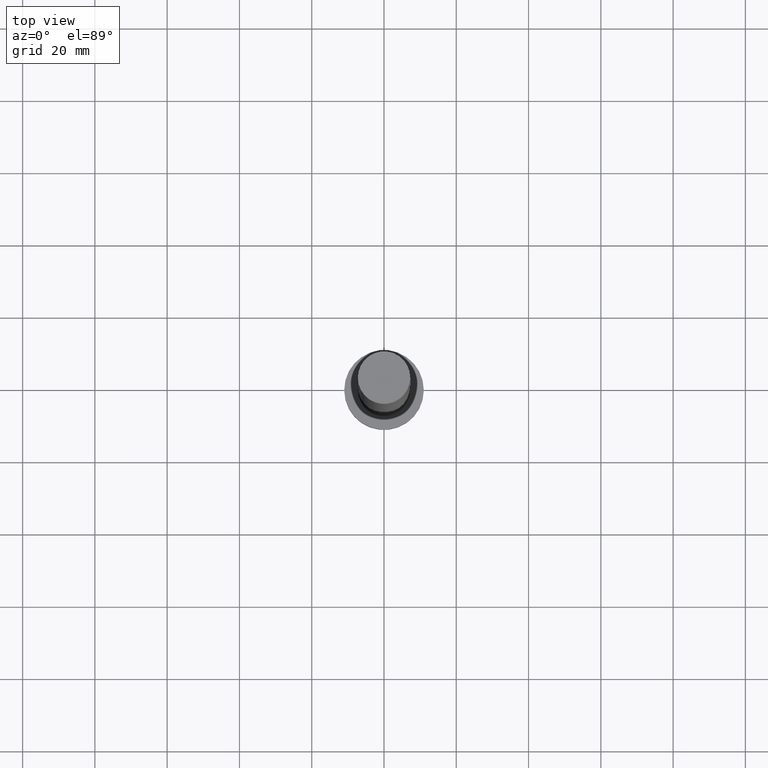
[diagram: clean part render]
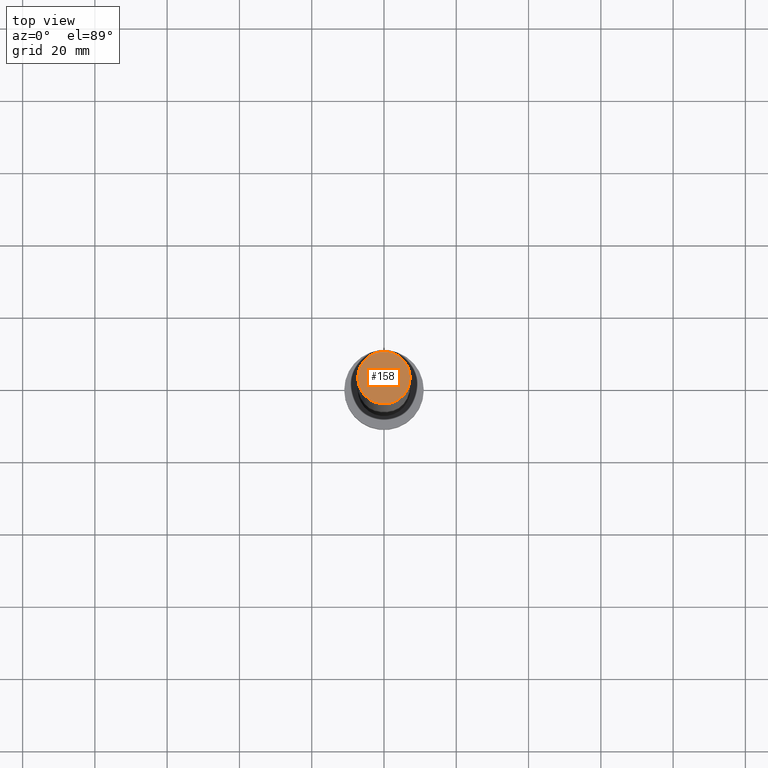
[diagram: same view with one face highlighted and labeled with its STEP entity id]
A machine part, top view. The second image highlights one B-rep face of the part: STEP entity #158.
In plain terms, the highlighted planar face has unit normal (0, 0, 1).
Its self-contained STEP definition (entity closure, byte-faithful):
#1 = DIRECTION ( 'NONE',  ( 1.000000000000000000, 0.000000000000000000, 0.000000000000000000 ) ) ;
#4 = AXIS2_PLACEMENT_3D ( 'NONE', #5, #61, #171 ) ;
#5 = CARTESIAN_POINT ( 'NONE',  ( 0.000000000000000000, 0.000000000000000000, 200.0000000000000000 ) ) ;
#8 = PLANE ( 'NONE',  #82 ) ;
#16 = AXIS2_PLACEMENT_3D ( 'NONE', #57, #75, #1 ) ;
#57 = CARTESIAN_POINT ( 'NONE',  ( 0.000000000000000000, 0.000000000000000000, 200.0000000000000000 ) ) ;
#61 = DIRECTION ( 'NONE',  ( 0.000000000000000000, 0.000000000000000000, 1.000000000000000000 ) ) ;
#71 = CARTESIAN_POINT ( 'NONE',  ( 0.000000000000000000, 0.000000000000000000, 200.0000000000000000 ) ) ;
#75 = DIRECTION ( 'NONE',  ( 0.000000000000000000, 0.000000000000000000, 1.000000000000000000 ) ) ;
#82 = AXIS2_PLACEMENT_3D ( 'NONE', #71, #130, #157 ) ;
#103 = EDGE_LOOP ( 'NONE', ( #146, #203 ) ) ;
#117 = CIRCLE ( 'NONE', #4, 7.250000000000000000 ) ;
#122 = VERTEX_POINT ( 'NONE', #190 ) ;
#130 = DIRECTION ( 'NONE',  ( 0.000000000000000000, 0.000000000000000000, 1.000000000000000000 ) ) ;
#133 = CARTESIAN_POINT ( 'NONE',  ( -7.250000000000000000, 0.000000000000000000, 200.0000000000000000 ) ) ;
#146 = ORIENTED_EDGE ( 'NONE', *, *, #215, .T. ) ;
#157 = DIRECTION ( 'NONE',  ( 1.000000000000000000, 0.000000000000000000, -0.000000000000000000 ) ) ;
#158 = ADVANCED_FACE ( 'NONE', ( #243 ), #8, .T. ) ;
#171 = DIRECTION ( 'NONE',  ( 1.000000000000000000, 0.000000000000000000, 0.000000000000000000 ) ) ;
#179 = EDGE_CURVE ( 'NONE', #122, #198, #225, .T. ) ;
#190 = CARTESIAN_POINT ( 'NONE',  ( 7.250000000000000000, 8.878689293818310074E-16, 200.0000000000000000 ) ) ;
#198 = VERTEX_POINT ( 'NONE', #133 ) ;
#203 = ORIENTED_EDGE ( 'NONE', *, *, #179, .T. ) ;
#215 = EDGE_CURVE ( 'NONE', #198, #122, #117, .T. ) ;
#225 = CIRCLE ( 'NONE', #16, 7.250000000000000000 ) ;
#243 = FACE_OUTER_BOUND ( 'NONE', #103, .T. ) ;